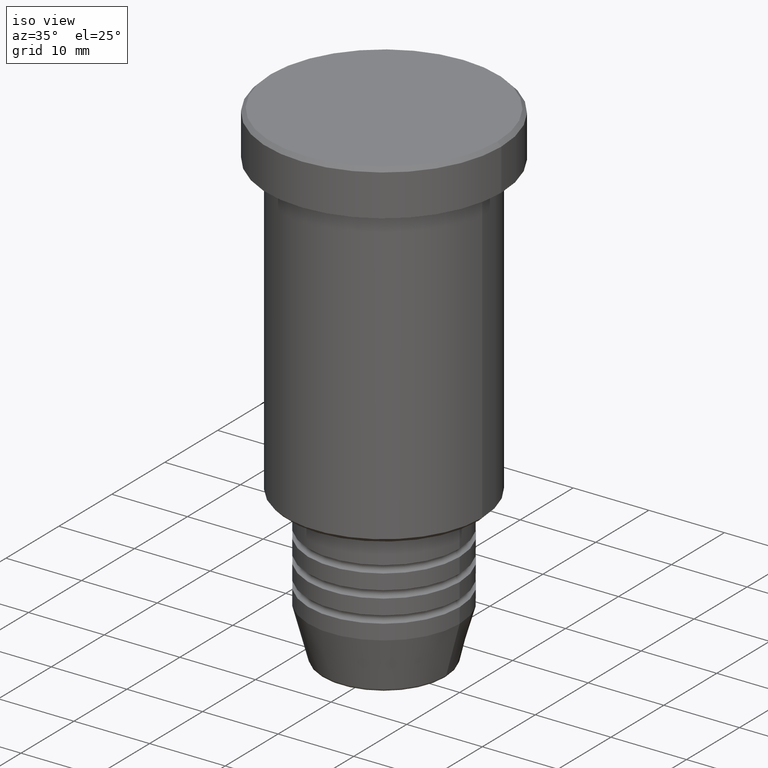
[diagram: clean part render]
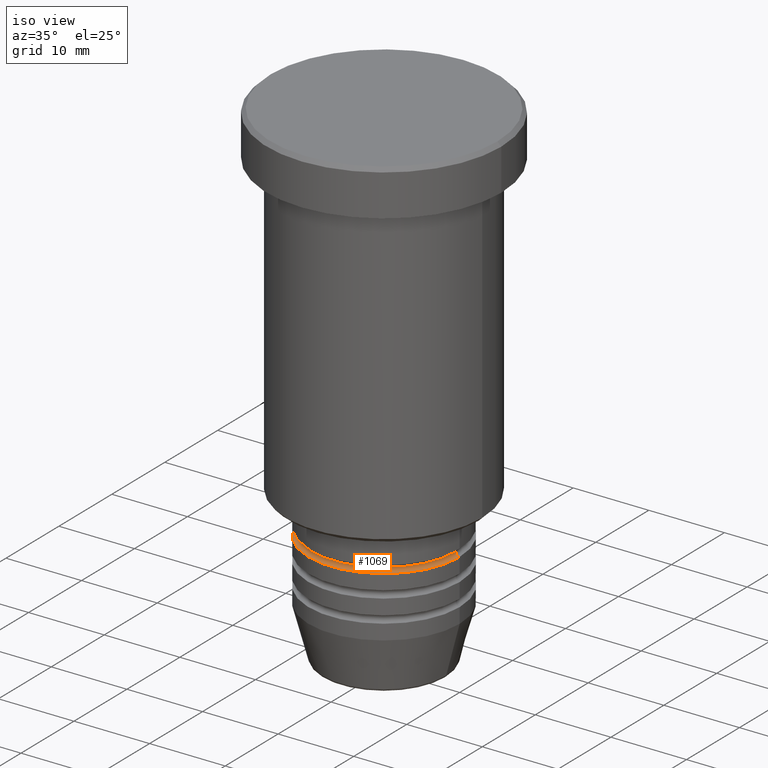
[diagram: same view with one face highlighted and labeled with its STEP entity id]
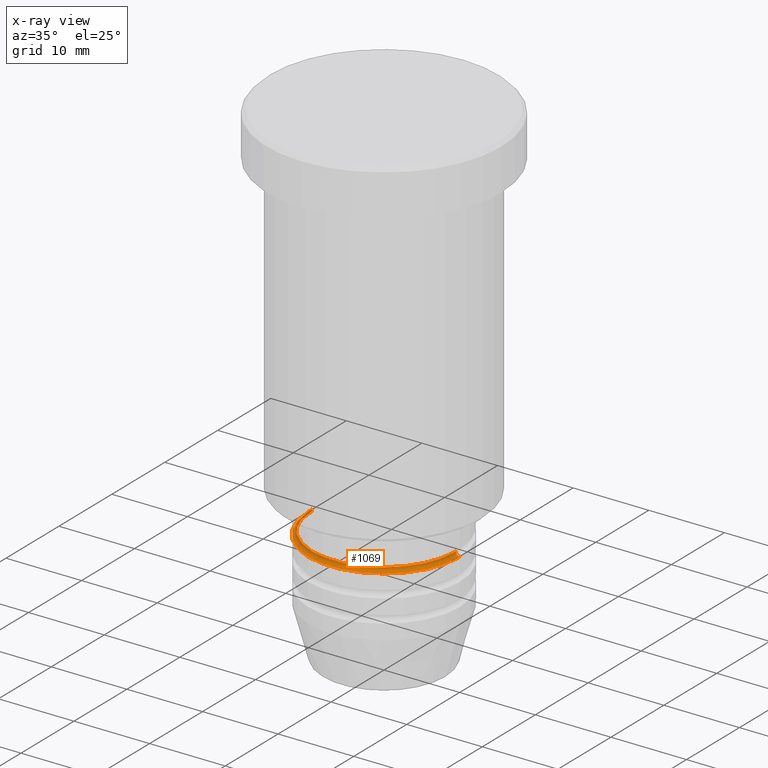
[diagram: x-ray of the same camera — body ghosted, the highlighted face saturated]
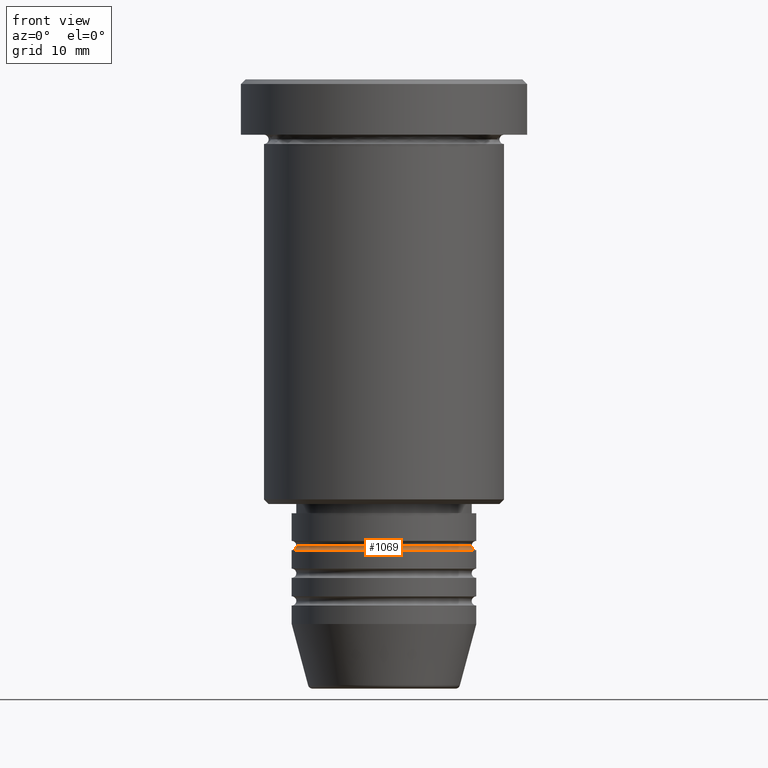
[diagram: same view with one face highlighted and labeled with its STEP entity id]
A machine part, iso view. The second image highlights one B-rep face of the part: STEP entity #1069.
The next image is the same camera in x-ray: the body ghosted, the highlighted face saturated — about 3% of this face is hidden behind the body in this view.
A second angle (front view) of the same face is appended — the face is thin or edge-on in the first view.
In plain terms, the highlighted toroidal blend (fillet) surface has major radius 10 mm and minor (blend) radius 0.5 mm.
Its self-contained STEP definition (entity closure, byte-faithful):
#45 = DIRECTION ( 'NONE',  ( -1.000000000000000000, 1.224646799147353454E-16, 0.000000000000000000 ) ) ;
#47 = FACE_OUTER_BOUND ( 'NONE', #776, .T. ) ;
#51 = VERTEX_POINT ( 'NONE', #277 ) ;
#152 = ORIENTED_EDGE ( 'NONE', *, *, #935, .F. ) ;
#228 = DIRECTION ( 'NONE',  ( 1.000000000000000000, 0.000000000000000000, 0.000000000000000000 ) ) ;
#268 = EDGE_CURVE ( 'NONE', #51, #532, #802, .T. ) ;
#277 = CARTESIAN_POINT ( 'NONE',  ( -9.500000000000001776, 1.194030629168669469E-15, -50.49999999999997868 ) ) ;
#364 = DIRECTION ( 'NONE',  ( 1.000000000000000000, 0.000000000000000000, 0.000000000000000000 ) ) ;
#380 = AXIS2_PLACEMENT_3D ( 'NONE', #381, #863, #364 ) ;
#381 = CARTESIAN_POINT ( 'NONE',  ( 0.000000000000000000, 0.000000000000000000, -50.99999999999997868 ) ) ;
#389 = DIRECTION ( 'NONE',  ( -0.000000000000000000, -0.000000000000000000, 1.000000000000000000 ) ) ;
#447 = VERTEX_POINT ( 'NONE', #971 ) ;
#485 = ORIENTED_EDGE ( 'NONE', *, *, #268, .T. ) ;
#488 = CARTESIAN_POINT ( 'NONE',  ( 0.000000000000000000, 0.000000000000000000, -50.49999999999997868 ) ) ;
#532 = VERTEX_POINT ( 'NONE', #808 ) ;
#539 = CARTESIAN_POINT ( 'NONE',  ( 9.500000000000001776, 0.000000000000000000, -50.49999999999997868 ) ) ;
#567 = AXIS2_PLACEMENT_3D ( 'NONE', #867, #743, #845 ) ;
#590 = TOROIDAL_SURFACE ( 'NONE', #691, 10.00000000000000178, 0.5000000000000000000 ) ;
#626 = AXIS2_PLACEMENT_3D ( 'NONE', #1145, #694, #45 ) ;
#691 = AXIS2_PLACEMENT_3D ( 'NONE', #981, #797, #228 ) ;
#694 = DIRECTION ( 'NONE',  ( 1.224646799147353207E-16, 1.000000000000000000, 0.000000000000000000 ) ) ;
#710 = ORIENTED_EDGE ( 'NONE', *, *, #944, .F. ) ;
#743 = DIRECTION ( 'NONE',  ( 0.000000000000000000, -1.000000000000000000, 0.000000000000000000 ) ) ;
#744 = CIRCLE ( 'NONE', #380, 10.00000000000000000 ) ;
#771 = EDGE_CURVE ( 'NONE', #532, #447, #744, .T. ) ;
#776 = EDGE_LOOP ( 'NONE', ( #710, #485, #856, #152 ) ) ;
#797 = DIRECTION ( 'NONE',  ( -0.000000000000000000, -0.000000000000000000, 1.000000000000000000 ) ) ;
#802 = CIRCLE ( 'NONE', #626, 0.5000000000000004441 ) ;
#808 = CARTESIAN_POINT ( 'NONE',  ( -10.00000000000000000, 1.224646799147353256E-15, -50.99999999999997868 ) ) ;
#845 = DIRECTION ( 'NONE',  ( 0.000000000000000000, 0.000000000000000000, -1.000000000000000000 ) ) ;
#856 = ORIENTED_EDGE ( 'NONE', *, *, #771, .T. ) ;
#863 = DIRECTION ( 'NONE',  ( -0.000000000000000000, -0.000000000000000000, 1.000000000000000000 ) ) ;
#867 = CARTESIAN_POINT ( 'NONE',  ( 10.00000000000000178, 0.000000000000000000, -50.49999999999997868 ) ) ;
#874 = DIRECTION ( 'NONE',  ( 1.000000000000000000, 0.000000000000000000, 0.000000000000000000 ) ) ;
#935 = EDGE_CURVE ( 'NONE', #980, #447, #1107, .T. ) ;
#944 = EDGE_CURVE ( 'NONE', #51, #980, #1060, .T. ) ;
#964 = AXIS2_PLACEMENT_3D ( 'NONE', #488, #389, #874 ) ;
#971 = CARTESIAN_POINT ( 'NONE',  ( 10.00000000000000000, 0.000000000000000000, -50.99999999999997868 ) ) ;
#980 = VERTEX_POINT ( 'NONE', #539 ) ;
#981 = CARTESIAN_POINT ( 'NONE',  ( 0.000000000000000000, 0.000000000000000000, -50.49999999999997868 ) ) ;
#1060 = CIRCLE ( 'NONE', #964, 9.500000000000001776 ) ;
#1069 = ADVANCED_FACE ( 'NONE', ( #47 ), #590, .F. ) ;
#1107 = CIRCLE ( 'NONE', #567, 0.5000000000000004441 ) ;
#1145 = CARTESIAN_POINT ( 'NONE',  ( -10.00000000000000178, 1.224646799147353454E-15, -50.49999999999997868 ) ) ;